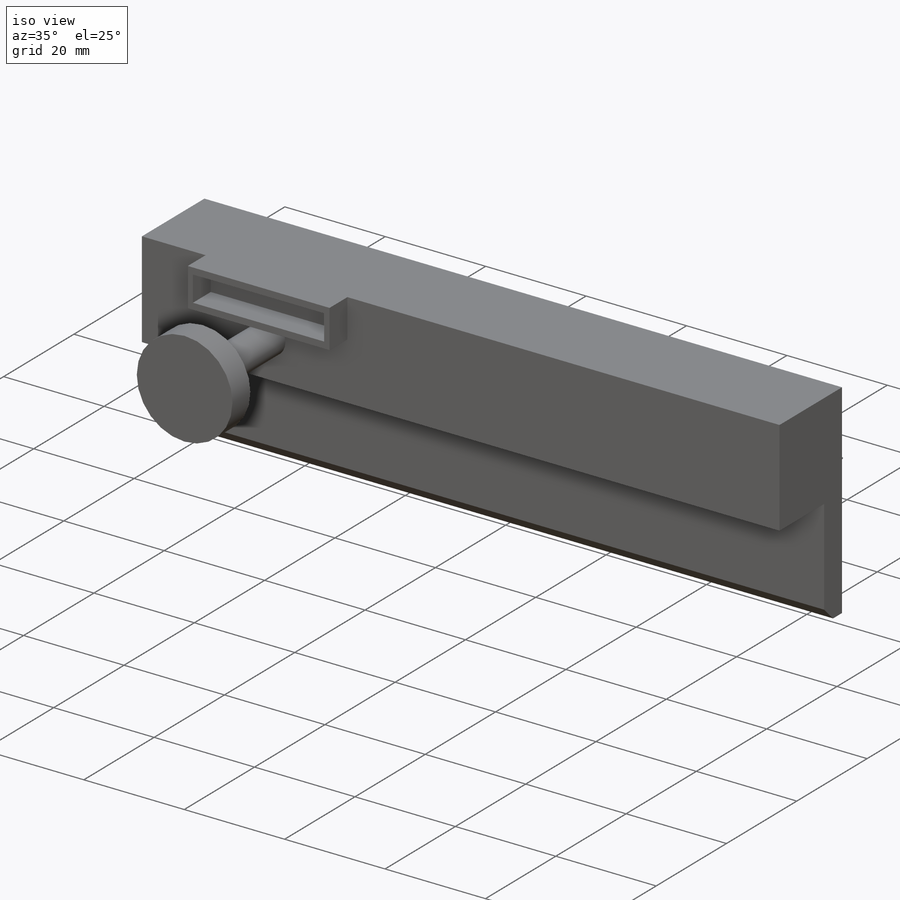
[diagram: iso view]
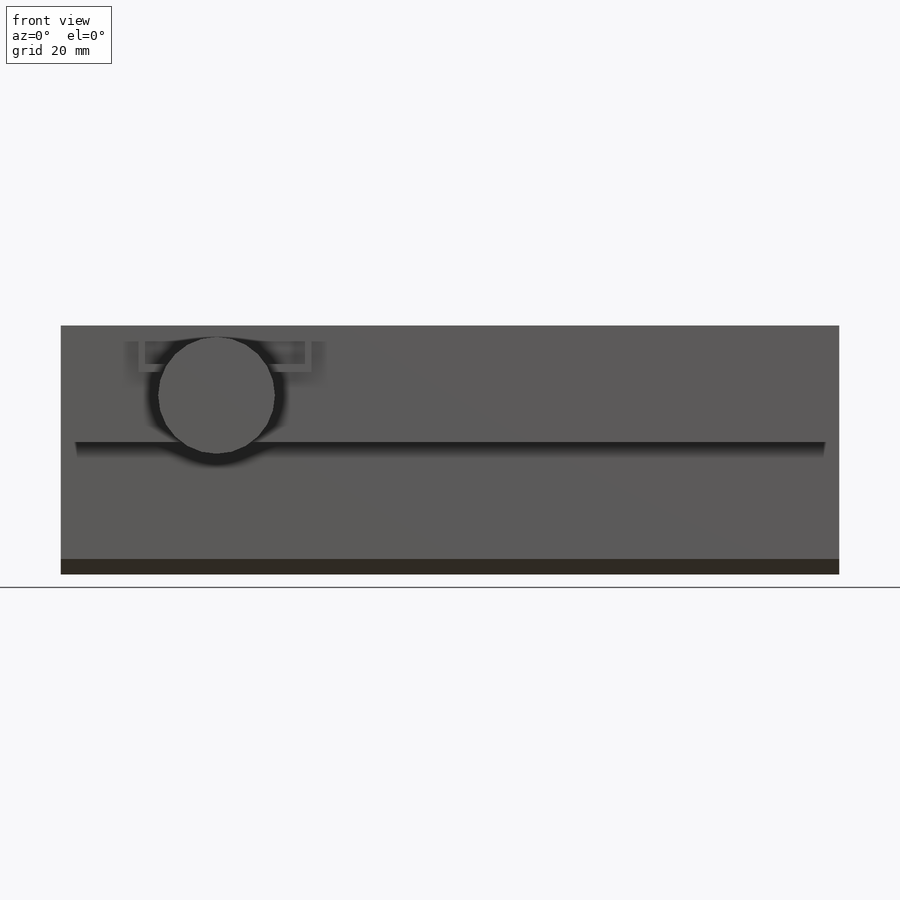
[diagram: front view]
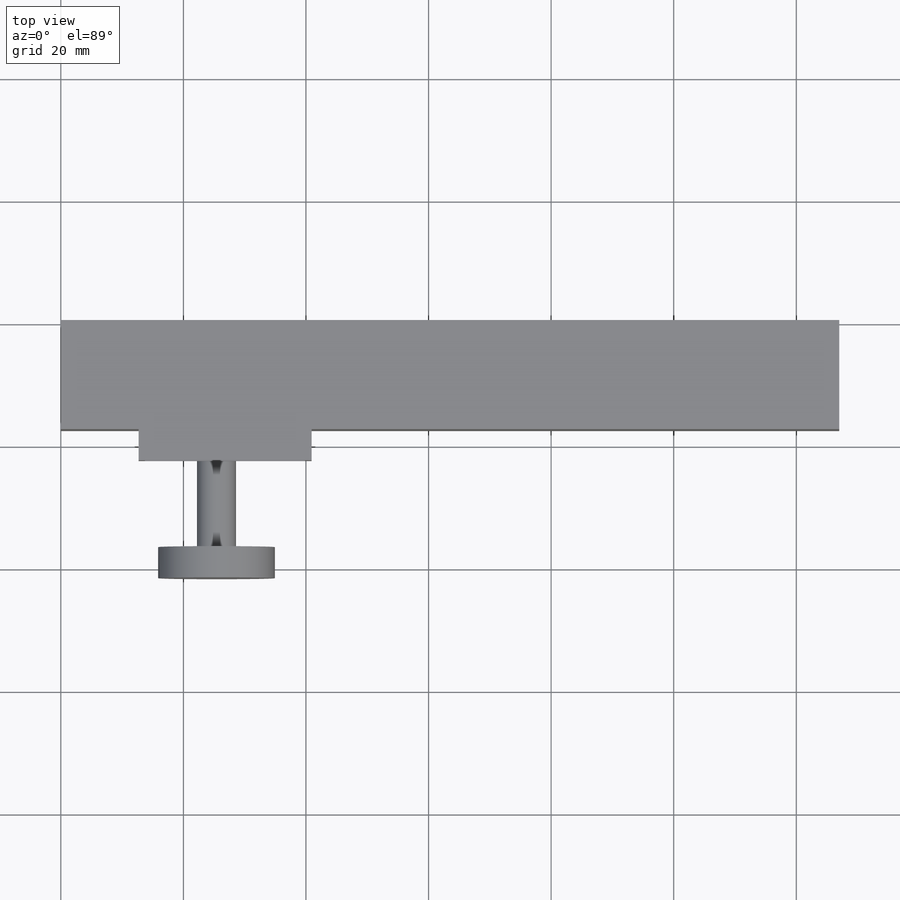
[diagram: top view]
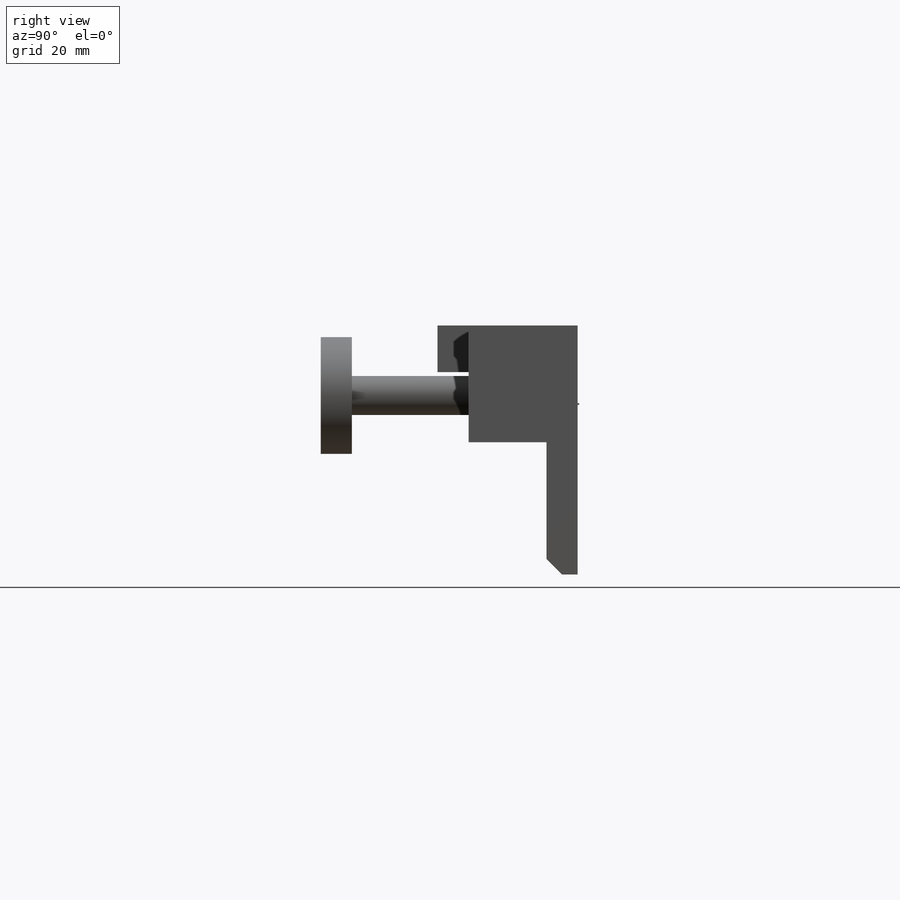
[diagram: right view]
SOLIDWORKS PART (.sldprt)
format: sldprt  version: not decoded by parser v0  size: 229,376 bytes
history: native  units: mm
features: sketch x7, extrude x6, material x1, chamfer x1, cut_extrude x1 (+11 scaffold rows collapsed)
feature tree (27):
  scaffold x11  (default folders/planes/origin — collapsed)
  material  "Material <not specified>"
  sketch  "Sketch1"  dims[D1=40.64mm D2=127.0mm]
  extrude  "Boss-Extrude1"  Depth=5.08mm
  chamfer  "Chamfer3"  Distance=2.54mm Angle=45deg
  sketch  "Sketch6"  dims[D1=19.05mm]
  extrude  "Boss-Extrude4"  Depth=12.7mm
  sketch  "Sketch14"  dims[D1=6.35mm D2=25.4mm D3=7.62mm]
  extrude  "Boss-Extrude9"  Depth=19.05mm
  sketch  "Sketch15"  dims[D1=19.05mm]
  extrude  "Boss-Extrude10"  Depth=5.08mm
  sketch  "Sketch16"  dims[D1=7.62mm D2=0.0mm D3=12.7mm]
  extrude  "Boss-Extrude11"  Depth=5.08mm
  sketch  "Sketch17"  dims[D1=5.08mm D2=~26.134311mm D3=1.27mm D4=13.716mm]
  cut_extrude  "Cut-Extrude4"  Depth=5.08mm
  sketch  "Sketch18"  dims[D1=0.254mm D2=12.7mm]
  extrude  "Boss-Extrude12"  Depth=0.254mm
decode coverage: 15 of 15 modeling features carry decoded parameters
note: ~ marks probable driven/reference dimensions
note: suppression state not decoded; provenance and decode notes live in map.json
